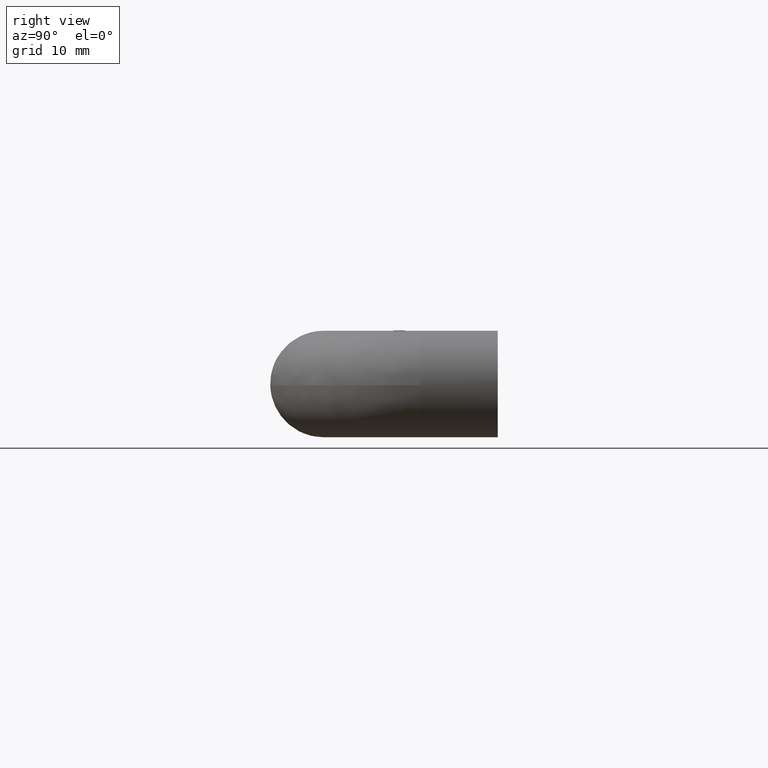
[diagram: clean part render]
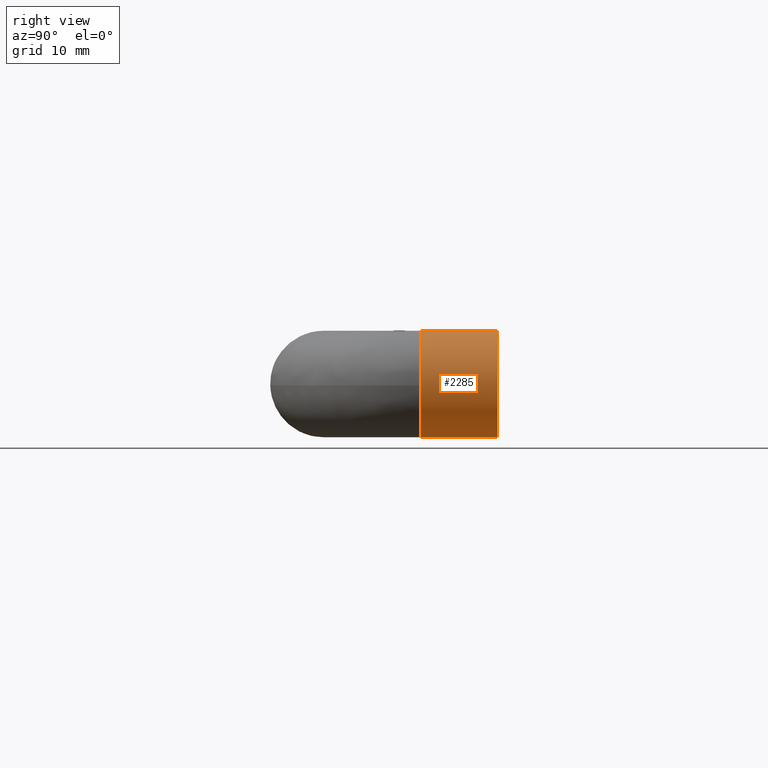
[diagram: same view with one face highlighted and labeled with its STEP entity id]
A machine part, right view. The second image highlights one B-rep face of the part: STEP entity #2285.
In plain terms, the highlighted face is a freeform B-spline surface patch.
Its self-contained STEP definition (entity closure, byte-faithful):
#2115=CARTESIAN_POINT('',(55.850895957594979,-8.200000000051865,3.610392727294113));
#2116=CARTESIAN_POINT('',(57.709232340646857,-8.200000000051864,5.746013858142022));
#2117=CARTESIAN_POINT('',(60.527151638861227,-8.200000000051864,5.474679091019481));
#2118=CARTESIAN_POINT('',(66.001830729880709,-8.200000000051864,4.947527452158247));
#2119=CARTESIAN_POINT('',(65.474679091019482,-8.200000000051864,-0.527151638861234));
#2120=CARTESIAN_POINT('',(64.947527452158255,-8.200000000051864,-6.001830729880716));
#2121=CARTESIAN_POINT('',(59.472848361138773,-8.200000000051864,-5.474679091019481));
#2122=CARTESIAN_POINT('',(53.998169270119298,-8.200000000051864,-4.947527452158247));
#2123=CARTESIAN_POINT('',(54.525320908980518,-8.200000000051864,0.527151638861234));
#2124=CARTESIAN_POINT('',(55.850895957594979,0.205000000001297,3.610392727294113));
#2125=CARTESIAN_POINT('',(57.709232340646857,0.205000000001297,5.746013858142022));
#2126=CARTESIAN_POINT('',(60.527151638861227,0.205000000001297,5.474679091019481));
#2127=CARTESIAN_POINT('',(66.001830729880709,0.205000000001297,4.947527452158247));
#2128=CARTESIAN_POINT('',(65.474679091019482,0.205000000001297,-0.527151638861234));
#2129=CARTESIAN_POINT('',(64.947527452158255,0.205000000001297,-6.001830729880716));
#2130=CARTESIAN_POINT('',(59.472848361138773,0.205000000001297,-5.474679091019481));
#2131=CARTESIAN_POINT('',(53.998169270119298,0.205000000001297,-4.947527452158247));
#2132=CARTESIAN_POINT('',(54.525320908980518,0.205000000001297,0.527151638861234));
#2140=(BOUNDED_SURFACE()B_SPLINE_SURFACE(2,1,((#2115,#2124),(#2116,#2125),(#2117,#2126),(#2118,#2127),(#2119,#2128),(#2120,#2129),(#2121,#2130),(#2122,#2131),(#2123,#2132)),.UNSPECIFIED.,.F.,.F.,.U.)B_SPLINE_SURFACE_WITH_KNOTS((3,2,2,2,3),(2,2),(0.0,5.467619023324849,14.580317395532930,23.693015767741009,32.805714139949089),(0.0,8.405000000053162),.UNSPECIFIED.)GEOMETRIC_REPRESENTATION_ITEM()RATIONAL_B_SPLINE_SURFACE(((0.859411254969543,0.859411254969543),(0.824264068711928,0.824264068711928),(1.0,1.0),(0.707106781186548,0.707106781186548),(1.0,1.0),(0.707106781186548,0.707106781186548),(1.0,1.0),(0.707106781186548,0.707106781186548),(1.0,1.0)))REPRESENTATION_ITEM('')SURFACE());
#2141=CARTESIAN_POINT('',(60.0,-8.0,5.500000000000000));
#2142=VERTEX_POINT('',#2141);
#2143=CARTESIAN_POINT('',(55.850895645994413,-8.000000000000005,3.610392369199177));
#2144=VERTEX_POINT('',#2143);
#2145=CARTESIAN_POINT('',(60.0,-8.0,5.500000000000000));
#2146=CARTESIAN_POINT('',(57.495159853382887,-8.0,5.500000000000002));
#2147=CARTESIAN_POINT('',(55.850895645994399,-8.000000000000007,3.610392369199176));
#2155=(BOUNDED_CURVE()B_SPLINE_CURVE(2,(#2145,#2146,#2147),.UNSPECIFIED.,.F.,.U.)B_SPLINE_CURVE_WITH_KNOTS((3,3),(0.500000000000000,0.635463017383206),.UNSPECIFIED.)CURVE()GEOMETRIC_REPRESENTATION_ITEM()RATIONAL_B_SPLINE_CURVE((1.0,0.841295203233800,0.854579451612704))REPRESENTATION_ITEM(''));
#2156=EDGE_CURVE('',#2142,#2144,#2155,.T.);
#2157=ORIENTED_EDGE('',*,*,#2156,.F.);
#2158=CARTESIAN_POINT('',(65.498263041057413,-8.000000000027701,-0.138215524967510));
#2159=VERTEX_POINT('',#2158);
#2160=CARTESIAN_POINT('',(65.498263041057413,-8.000000000027701,-0.138215524967510));
#2161=CARTESIAN_POINT('',(65.500000000000000,-8.0,-0.069118676707755));
#2162=CARTESIAN_POINT('',(65.500000000000000,-8.0,0.0));
#2163=CARTESIAN_POINT('',(65.500000000000000,-8.0,5.500000000000001));
#2164=CARTESIAN_POINT('',(60.0,-8.0,5.500000000000000));
#2172=(BOUNDED_CURVE()B_SPLINE_CURVE(2,(#2160,#2161,#2162,#2163,#2164),.UNSPECIFIED.,.F.,.U.)B_SPLINE_CURVE_WITH_KNOTS((3,2,3),(0.245579891767952,0.250000000000000,0.500000000000000),.UNSPECIFIED.)CURVE()GEOMETRIC_REPRESENTATION_ITEM()RATIONAL_B_SPLINE_CURVE((0.989826157677382,0.994821521089646,1.0,0.707106781186548,1.0))REPRESENTATION_ITEM(''));
#2173=EDGE_CURVE('',#2159,#2142,#2172,.T.);
#2174=ORIENTED_EDGE('',*,*,#2173,.F.);
#2175=CARTESIAN_POINT('',(60.0,-8.0,-5.500000000000000));
#2176=VERTEX_POINT('',#2175);
#2177=CARTESIAN_POINT('',(60.0,-8.0,-5.500000000000000));
#2178=CARTESIAN_POINT('',(65.363478318936671,-8.000000000000002,-5.500000000000001));
#2179=CARTESIAN_POINT('',(65.498263041057413,-8.000000000027701,-0.138215524967510));
#2187=(BOUNDED_CURVE()B_SPLINE_CURVE(2,(#2177,#2178,#2179),.UNSPECIFIED.,.F.,.U.)B_SPLINE_CURVE_WITH_KNOTS((3,3),(0.0,0.245579891767952),.UNSPECIFIED.)CURVE()GEOMETRIC_REPRESENTATION_ITEM()RATIONAL_B_SPLINE_CURVE((1.0,0.712285260096901,0.989826157677382))REPRESENTATION_ITEM(''));
#2188=EDGE_CURVE('',#2176,#2159,#2187,.T.);
#2189=ORIENTED_EDGE('',*,*,#2188,.F.);
#2190=CARTESIAN_POINT('',(59.861784475017387,-8.000000000050598,-5.498263041057037));
#2191=VERTEX_POINT('',#2190);
#2192=CARTESIAN_POINT('',(59.861784475017394,-8.000000000050598,-5.498263041057037));
#2193=CARTESIAN_POINT('',(59.930881323277134,-8.0,-5.500000000000000));
#2194=CARTESIAN_POINT('',(60.0,-8.0,-5.500000000000000));
#2202=(BOUNDED_CURVE()B_SPLINE_CURVE(2,(#2192,#2193,#2194),.UNSPECIFIED.,.F.,.U.)B_SPLINE_CURVE_WITH_KNOTS((3,3),(0.995579891766991,1.0),.UNSPECIFIED.)CURVE()GEOMETRIC_REPRESENTATION_ITEM()RATIONAL_B_SPLINE_CURVE((0.989826157675210,0.994821521088521,1.0))REPRESENTATION_ITEM(''));
#2203=EDGE_CURVE('',#2191,#2176,#2202,.T.);
#2204=ORIENTED_EDGE('',*,*,#2203,.F.);
#2205=CARTESIAN_POINT('',(54.525320908988661,-8.0,0.527151638945815));
#2206=VERTEX_POINT('',#2205);
#2207=CARTESIAN_POINT('',(54.525320908988661,-8.000000000000002,0.527151638945815));
#2208=CARTESIAN_POINT('',(54.500000000000007,-8.0,0.264183944753701));
#2209=CARTESIAN_POINT('',(54.500000000000000,-8.0,0.0));
#2210=CARTESIAN_POINT('',(54.500000000000000,-8.0,-5.363478318907201));
#2211=CARTESIAN_POINT('',(59.861784475017394,-8.000000000050598,-5.498263041057037));
#2219=(BOUNDED_CURVE()B_SPLINE_CURVE(2,(#2207,#2208,#2209,#2210,#2211),.UNSPECIFIED.,.F.,.U.)B_SPLINE_CURVE_WITH_KNOTS((3,2,3),(0.733348904760177,0.750000000000000,0.995579891766991),.UNSPECIFIED.)CURVE()GEOMETRIC_REPRESENTATION_ITEM()RATIONAL_B_SPLINE_CURVE((0.963582689682066,0.980492028473756,1.0,0.712285260098027,0.989826157675209))REPRESENTATION_ITEM(''));
#2220=EDGE_CURVE('',#2206,#2191,#2219,.T.);
#2221=ORIENTED_EDGE('',*,*,#2220,.F.);
#2222=CARTESIAN_POINT('',(54.525320908988661,1.387779E-017,0.527151638945817));
#2223=VERTEX_POINT('',#2222);
#2224=CARTESIAN_POINT('',(54.525320908988661,-8.0,0.527151638945815));
#2225=CARTESIAN_POINT('',(54.525320908988661,1.387779E-017,0.527151638945817));
#2226=QUASI_UNIFORM_CURVE('',1,(#2224,#2225),.UNSPECIFIED.,.F.,.U.);
#2227=EDGE_CURVE('',#2206,#2223,#2226,.T.);
#2228=ORIENTED_EDGE('',*,*,#2227,.T.);
#2229=CARTESIAN_POINT('',(60.0,0.0,-5.500000000000000));
#2230=VERTEX_POINT('',#2229);
#2231=CARTESIAN_POINT('',(54.525320908988661,1.387779E-017,0.527151638945817));
#2232=CARTESIAN_POINT('',(54.500000000000000,0.0,0.264183944753702));
#2233=CARTESIAN_POINT('',(54.500000000000000,0.0,0.0));
#2234=CARTESIAN_POINT('',(54.500000000000014,0.0,-5.500000000000001));
#2235=CARTESIAN_POINT('',(60.0,0.0,-5.500000000000000));
#2243=(BOUNDED_CURVE()B_SPLINE_CURVE(2,(#2231,#2232,#2233,#2234,#2235),.UNSPECIFIED.,.F.,.U.)B_SPLINE_CURVE_WITH_KNOTS((3,2,3),(0.733348904760177,0.750000000000000,1.0),.UNSPECIFIED.)CURVE()GEOMETRIC_REPRESENTATION_ITEM()RATIONAL_B_SPLINE_CURVE((0.963582689682066,0.980492028473756,1.0,0.707106781186548,1.0))REPRESENTATION_ITEM(''));
#2244=EDGE_CURVE('',#2223,#2230,#2243,.T.);
#2245=ORIENTED_EDGE('',*,*,#2244,.T.);
#2246=CARTESIAN_POINT('',(60.0,0.0,5.500000000000000));
#2247=VERTEX_POINT('',#2246);
#2248=CARTESIAN_POINT('',(60.0,0.0,-5.500000000000000));
#2249=CARTESIAN_POINT('',(65.500000000000000,0.0,-5.500000000000001));
#2250=CARTESIAN_POINT('',(65.500000000000000,0.0,0.0));
#2251=CARTESIAN_POINT('',(65.500000000000000,0.0,5.500000000000001));
#2252=CARTESIAN_POINT('',(60.0,0.0,5.500000000000000));
#2260=(BOUNDED_CURVE()B_SPLINE_CURVE(2,(#2248,#2249,#2250,#2251,#2252),.UNSPECIFIED.,.F.,.U.)B_SPLINE_CURVE_WITH_KNOTS((3,2,3),(0.0,0.250000000000000,0.500000000000000),.UNSPECIFIED.)CURVE()GEOMETRIC_REPRESENTATION_ITEM()RATIONAL_B_SPLINE_CURVE((1.0,0.707106781186548,1.0,0.707106781186548,1.0))REPRESENTATION_ITEM(''));
#2261=EDGE_CURVE('',#2230,#2247,#2260,.T.);
#2262=ORIENTED_EDGE('',*,*,#2261,.T.);
#2263=CARTESIAN_POINT('',(55.850895649749503,1.614802E-017,3.610392373514570));
#2264=VERTEX_POINT('',#2263);
#2265=CARTESIAN_POINT('',(60.0,0.0,5.500000000000000));
#2266=CARTESIAN_POINT('',(57.495159860289789,0.0,5.500000000000000));
#2267=CARTESIAN_POINT('',(55.850895649749511,1.614802E-017,3.610392373514571));
#2275=(BOUNDED_CURVE()B_SPLINE_CURVE(2,(#2265,#2266,#2267),.UNSPECIFIED.,.F.,.U.)B_SPLINE_CURVE_WITH_KNOTS((3,3),(0.500000000000000,0.635463017068957),.UNSPECIFIED.)CURVE()GEOMETRIC_REPRESENTATION_ITEM()RATIONAL_B_SPLINE_CURVE((1.0,0.841295203601966,0.854579451551070))REPRESENTATION_ITEM(''));
#2276=EDGE_CURVE('',#2247,#2264,#2275,.T.);
#2277=ORIENTED_EDGE('',*,*,#2276,.T.);
#2278=CARTESIAN_POINT('',(55.850895645994413,-8.000000000000005,3.610392369199177));
#2279=CARTESIAN_POINT('',(55.850895649749503,1.614802E-017,3.610392373514570));
#2280=QUASI_UNIFORM_CURVE('',1,(#2278,#2279),.UNSPECIFIED.,.F.,.U.);
#2281=EDGE_CURVE('',#2144,#2264,#2280,.T.);
#2282=ORIENTED_EDGE('',*,*,#2281,.F.);
#2283=EDGE_LOOP('',(#2157,#2174,#2189,#2204,#2221,#2228,#2245,#2262,#2277,#2282));
#2284=FACE_OUTER_BOUND('',#2283,.T.);
#2285=ADVANCED_FACE('',(#2284),#2140,.T.);